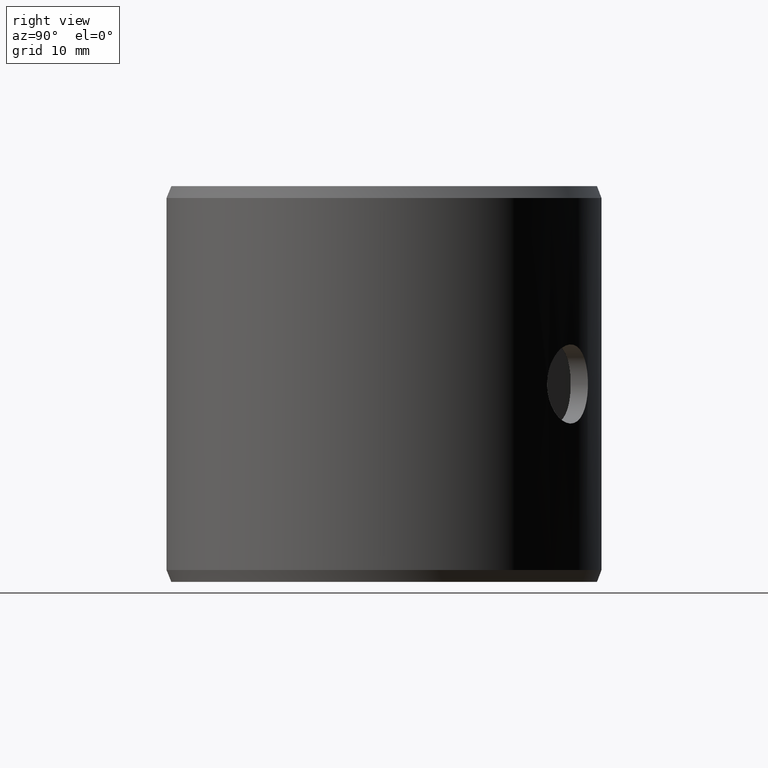
[diagram: clean part render]
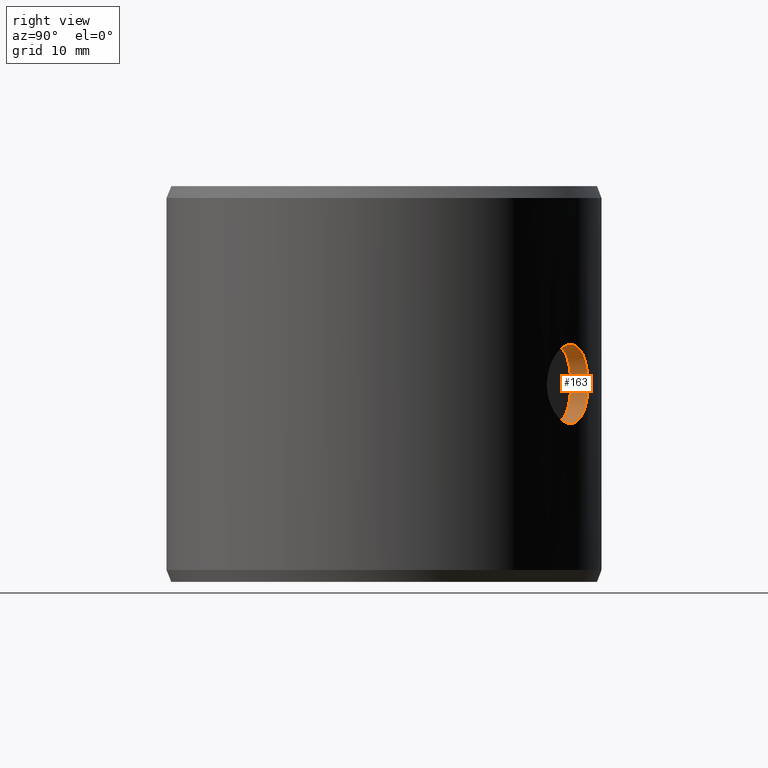
[diagram: same view with one face highlighted and labeled with its STEP entity id]
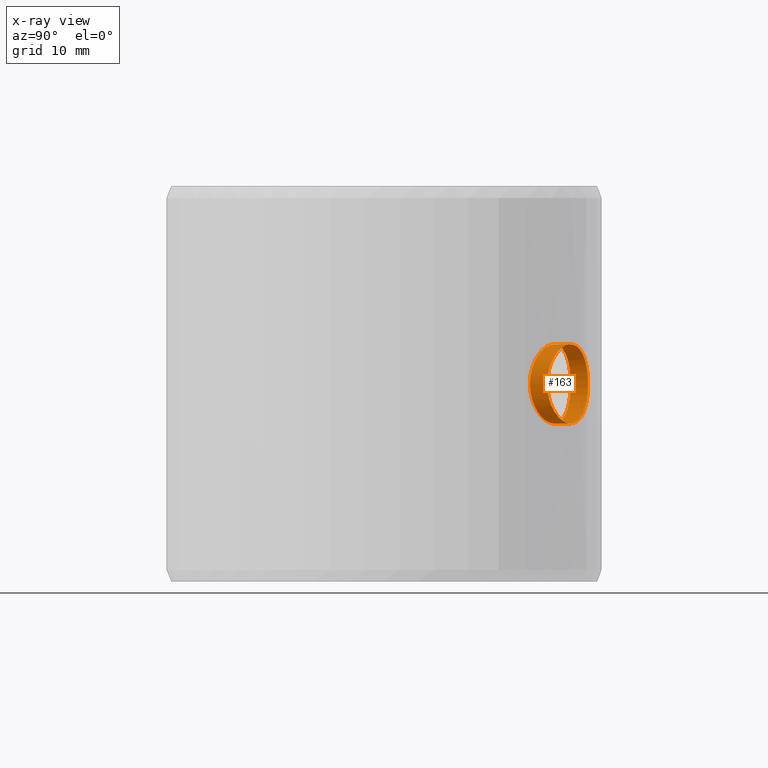
[diagram: x-ray of the same camera — body ghosted, the highlighted face saturated]
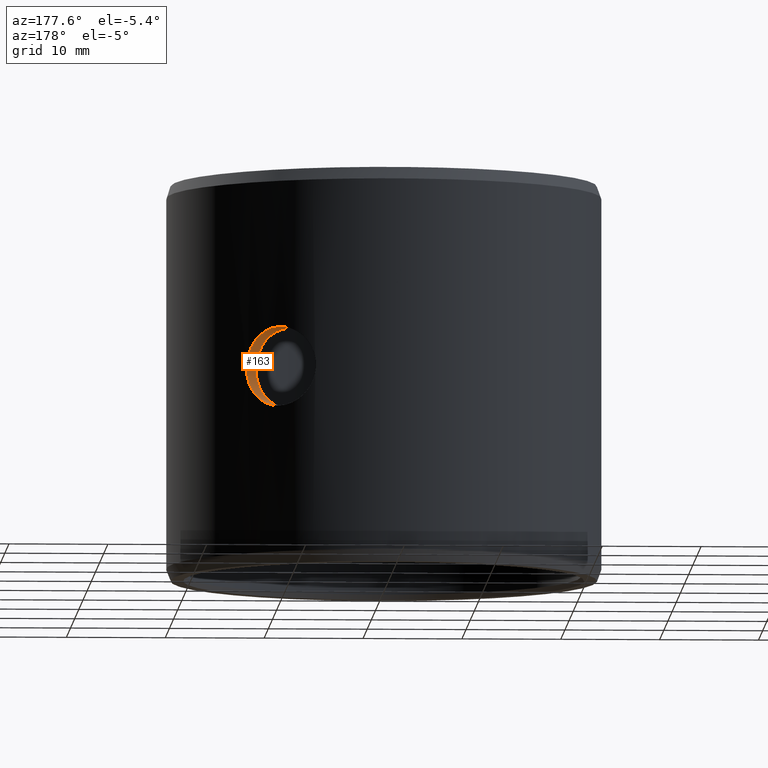
[diagram: same view with one face highlighted and labeled with its STEP entity id]
A machine part, right view. The second image highlights one B-rep face of the part: STEP entity #163.
The next image is the same camera in x-ray: the body ghosted, the highlighted face saturated — about 0% of this face is hidden behind the body in this view.
A second angle (auxiliary view) of the same face is appended — the face is thin or edge-on in the first view.
In plain terms, the highlighted cylindrical surface (bore or boss wall) has radius 4 mm, axis along (0.515, 0.8572, 0).
Its self-contained STEP definition (entity closure, byte-faithful):
#163=ADVANCED_FACE('',(#188,#189),#190,.F.);
#188=FACE_OUTER_BOUND('',#214,.T.);
#189=FACE_OUTER_BOUND('',#215,.T.);
#190=CYLINDRICAL_SURFACE('',#216,0.004);
#214=EDGE_LOOP('',(#297));
#215=EDGE_LOOP('',(#298));
#216=AXIS2_PLACEMENT_3D('',#299,#300,#301);
#297=ORIENTED_EDGE('',*,*,#326,.F.);
#298=ORIENTED_EDGE('',*,*,#327,.F.);
#299=CARTESIAN_POINT('',(0.0145718441119665,-0.00875564727342002,0.02));
#300=DIRECTION('',(0.857167300703911,-0.515038074907061,0.0));
#301=DIRECTION('',(-0.515038074907061,-0.857167300703911,0.0));
#326=EDGE_CURVE('',#368,#368,#369,.T.);
#327=EDGE_CURVE('',#370,#370,#371,.T.);
#368=VERTEX_POINT('',#428);
#369=B_SPLINE_CURVE_WITH_KNOTS('',3,(#429,#430,#431,#432,#433,#434,#435,#436,#437,#438,#439,#440,#441,#442,#443,#444,#445,#446,#447,#448,#449,#450,#451,#452,#453,#454,#455,#456,#457,#458,#459,#460,#461,#462,#463,#464,#465,#466,#467,#468,#469,#470,#471,#472,#473,#474,#475,#476,#477,#478,#479,#480,#481,#482,#483,#484,#485,#486,#487,#488,#489,#490,#491,#492,#493,#494),.UNSPECIFIED.,.T.,.F.,(2,2,2,2,2,2,2,2,2,2,2,2,2,2,2,2,2,2,2,2,2,2,2,2,2,2,2,2,2,2,2,2,2,2,2),(-0.000783488712854397,0.0,0.000783488712854403,0.00156697742570881,0.00235046613856321,0.00313395485141761,0.00391744356427201,0.00470093227712641,0.00548442098998081,0.00626790970283521,0.00705139841568961,0.00783488712854401,0.00861837584139841,0.00940186455425281,0.0101853532671072,0.0109688419799616,0.011752330692816,0.0125358194056704,0.0133193081185248,0.0141027968313792,0.0148862855442336,0.015669774257088,0.0164532629699424,0.0172367516827968,0.0180202403956512,0.0188037291085056,0.01958721782136,0.0203707065342144,0.0211541952470688,0.0219376839599232,0.0227211726727776,0.023504661385632,0.0242881500984864,0.0250716388113408,0.0258551275241952),.UNSPECIFIED.);
#370=VERTEX_POINT('',#495);
#371=B_SPLINE_CURVE_WITH_KNOTS('',3,(#496,#497,#498,#499,#500,#501,#502,#503,#504,#505,#506,#507,#508,#509,#510,#511,#512,#513,#514,#515,#516,#517,#518,#519,#520,#521,#522,#523,#524,#525,#526,#527,#528,#529,#530,#531,#532,#533,#534,#535,#536,#537,#538,#539,#540,#541,#542,#543,#544,#545,#546,#547,#548,#549,#550,#551,#552,#553,#554,#555,#556,#557,#558,#559,#560,#561),.UNSPECIFIED.,.T.,.F.,(2,2,2,2,2,2,2,2,2,2,2,2,2,2,2,2,2,2,2,2,2,2,2,2,2,2,2,2,2,2,2,2,2,2,2),(-0.000783143181487496,0.0,0.000783143181487496,0.00156628636297499,0.00234942954446249,0.00313257272594999,0.00391571590743748,0.00469885908892498,0.00548200227041248,0.00626514545189997,0.00704828863338747,0.00783143181487496,0.00861457499636246,0.00939771817784996,0.0101808613593375,0.010964004540825,0.0117471477223124,0.0125302909037999,0.0133134340852874,0.0140965772667749,0.0148797204482624,0.0156628636297499,0.0164460068112374,0.0172291499927249,0.0180122931742124,0.0187954363556999,0.0195785795371874,0.0203617227186749,0.0211448659001624,0.0219280090816499,0.0227111522631374,0.0234942954446249,0.0242774386261124,0.0250605818075999,0.0258437249890874),.UNSPECIFIED.);
#428=CARTESIAN_POINT('',(0.0147368277877588,-0.0135213130558368,0.02));
#429=CARTESIAN_POINT('',(0.0147368277877588,-0.0135213130558368,0.0202649768366606));
#430=CARTESIAN_POINT('',(0.0147368277877588,-0.0135213130558368,0.0197350231633394));
#431=CARTESIAN_POINT('',(0.0147548588185547,-0.0135017349604381,0.0194746115155811));
#432=CARTESIAN_POINT('',(0.0148248897886548,-0.0134248034790695,0.0189625019382956));
#433=CARTESIAN_POINT('',(0.0148777620439247,-0.0133664749548795,0.0187081043687347));
#434=CARTESIAN_POINT('',(0.015013660018012,-0.0132136470748472,0.0182240496829964));
#435=CARTESIAN_POINT('',(0.015096101316406,-0.0131198088128641,0.0179945749427164));
#436=CARTESIAN_POINT('',(0.0152875369807863,-0.0128962347723045,0.0175602861250295));
#437=CARTESIAN_POINT('',(0.0153972162432063,-0.0127655896196565,0.0173551958955521));
#438=CARTESIAN_POINT('',(0.01563180601329,-0.0124772267407629,0.0169872845563086));
#439=CARTESIAN_POINT('',(0.0157576702396287,-0.0123184483584925,0.0168219438816031));
#440=CARTESIAN_POINT('',(0.0160246708287192,-0.0119690545229321,0.016529492696028));
#441=CARTESIAN_POINT('',(0.0161631152024075,-0.0117818459578267,0.0164056508608759));
#442=CARTESIAN_POINT('',(0.0164425741265372,-0.0113885882932689,0.0162059254306111));
#443=CARTESIAN_POINT('',(0.0165856226508623,-0.011179622130052,0.0161287501269086));
#444=CARTESIAN_POINT('',(0.016869042553392,-0.0107471965190648,0.0160257250547623));
#445=CARTESIAN_POINT('',(0.0170073640447639,-0.0105270130755956,0.0160001556034499));
#446=CARTESIAN_POINT('',(0.017276887997938,-0.010078570193812,0.0159998457990094));
#447=CARTESIAN_POINT('',(0.0174092679568996,-0.00984801587480328,0.0160259744036255));
#448=CARTESIAN_POINT('',(0.0176565324375543,-0.00939749380138671,0.016128316406424));
#449=CARTESIAN_POINT('',(0.0177725068907729,-0.0091759022486153,0.0162040304964613));
#450=CARTESIAN_POINT('',(0.0179904432382571,-0.00874088870480353,0.0164049855142014));
#451=CARTESIAN_POINT('',(0.0180913225134225,-0.0085294446780273,0.016529925083976));
#452=CARTESIAN_POINT('',(0.0182726691939624,-0.00813369149453143,0.0168191086026926));
#453=CARTESIAN_POINT('',(0.0183545876534978,-0.00794634405053023,0.0169851821852114));
#454=CARTESIAN_POINT('',(0.0185005761833137,-0.00760026003402093,0.0173568814974547));
#455=CARTESIAN_POINT('',(0.0185631023485181,-0.00744532049031294,0.0175581064867447));
#456=CARTESIAN_POINT('',(0.0186704321776277,-0.00717192640129805,0.0179906117354856));
#457=CARTESIAN_POINT('',(0.0187155607881087,-0.00705253189640114,0.0182247654896944));
#458=CARTESIAN_POINT('',(0.0187865809005554,-0.00686110776988901,0.0187081663927967));
#459=CARTESIAN_POINT('',(0.0188128202513417,-0.00678826558198345,0.0189574781197062));
#460=CARTESIAN_POINT('',(0.0188481938548091,-0.00668942029120389,0.0194714901600617));
#461=CARTESIAN_POINT('',(0.0188570961112188,-0.00666407730027469,0.019736980832904));
#462=CARTESIAN_POINT('',(0.018857168437677,-0.00666387263720272,0.0202597645692136));
#463=CARTESIAN_POINT('',(0.0188486220073478,-0.00668821368918649,0.0205200351588204));
#464=CARTESIAN_POINT('',(0.018813264383158,-0.00678703449066663,0.0210382667522375));
#465=CARTESIAN_POINT('',(0.0187868153247065,-0.00686045681838141,0.0212896275802896));
#466=CARTESIAN_POINT('',(0.0187162312261579,-0.00705074368350564,0.0217712737932063));
#467=CARTESIAN_POINT('',(0.018671433426763,-0.00716933434941554,0.0220048699439007));
#468=CARTESIAN_POINT('',(0.0185635975078861,-0.00744410026725574,0.0224403751213335));
#469=CARTESIAN_POINT('',(0.0185010864351698,-0.00759897521072943,0.0226413493827257));
#470=CARTESIAN_POINT('',(0.0183564989111846,-0.00794188713459098,0.0230104137630827));
#471=CARTESIAN_POINT('',(0.0182736408044104,-0.00813151267936323,0.0231790990725448));
#472=CARTESIAN_POINT('',(0.0180922044484154,-0.00852757790348447,0.0234689090258068));
#473=CARTESIAN_POINT('',(0.0179930363675113,-0.0087355524379243,0.0235921136850152));
#474=CARTESIAN_POINT('',(0.0177751332248424,-0.00917081637355227,0.0237940454768979));
#475=CARTESIAN_POINT('',(0.0176576076474414,-0.00939544743905922,0.0238710012810527));
#476=CARTESIAN_POINT('',(0.0174113300170644,-0.00984434494763255,0.0239734063996025));
#477=CARTESIAN_POINT('',(0.0172807942253257,-0.0100719369153565,0.0239998136980198));
#478=CARTESIAN_POINT('',(0.0170087883789147,-0.010524774589808,0.0240001843328627));
#479=CARTESIAN_POINT('',(0.0168703380948992,-0.0107451157161726,0.0239744616152448));
#480=CARTESIAN_POINT('',(0.0165891637613913,-0.0111743216746203,0.0238728165112523));
#481=CARTESIAN_POINT('',(0.0164449149356746,-0.0113852324409273,0.023795543599876));
#482=CARTESIAN_POINT('',(0.0161641778756178,-0.0117804116473452,0.0235953100730238));
#483=CARTESIAN_POINT('',(0.0160269833724549,-0.0119659443173579,0.0234726500905113));
#484=CARTESIAN_POINT('',(0.0157609535243587,-0.0123142341796013,0.0231820344319109));
#485=CARTESIAN_POINT('',(0.0156328480205379,-0.012475920741666,0.0230141515675283));
#486=CARTESIAN_POINT('',(0.0153983193988574,-0.0127642585086773,0.0226467304740491));
#487=CARTESIAN_POINT('',(0.0152903304125845,-0.0128929415868406,0.0224455244518676));
#488=CARTESIAN_POINT('',(0.0150967773925083,-0.0131190494796209,0.0220074760042898));
#489=CARTESIAN_POINT('',(0.015014267159697,-0.0132129541228296,0.021777556689022));
#490=CARTESIAN_POINT('',(0.0148789076701209,-0.0133651966517059,0.0212965252760537));
#491=CARTESIAN_POINT('',(0.0148257632082183,-0.0134238414301546,0.0210427887486843));
#492=CARTESIAN_POINT('',(0.0147548634108766,-0.0135017324508548,0.0205265048407942));
#493=CARTESIAN_POINT('',(0.0147368277877588,-0.0135213130558368,0.0202649768366606));
#494=CARTESIAN_POINT('',(0.0147368277877588,-0.0135213130558368,0.0197350231633394));
#495=CARTESIAN_POINT('',(0.0164832116264059,-0.0145706463301777,0.02));
#496=CARTESIAN_POINT('',(0.0164832116264059,-0.0145706463301777,0.0197351496906929));
#497=CARTESIAN_POINT('',(0.0164832116264058,-0.0145706463301777,0.0202648503093071));
#498=CARTESIAN_POINT('',(0.0165007922203708,-0.0145508260703122,0.0205251622067491));
#499=CARTESIAN_POINT('',(0.0165691298990779,-0.014472961604862,0.0210371156822544));
#500=CARTESIAN_POINT('',(0.0166207341600073,-0.0144139371658827,0.0212914496460818));
#501=CARTESIAN_POINT('',(0.0167535756167427,-0.0142593159966995,0.0217755682362726));
#502=CARTESIAN_POINT('',(0.0168342249639935,-0.0141644069047839,0.022005092029244));
#503=CARTESIAN_POINT('',(0.0170217603192587,-0.0139384801444182,0.0224394736495143));
#504=CARTESIAN_POINT('',(0.0171293711168049,-0.0138064877587962,0.0226447052538363));
#505=CARTESIAN_POINT('',(0.0173599083670454,-0.013515474115946,0.0230128029697214));
#506=CARTESIAN_POINT('',(0.0174837557700863,-0.0133553932541377,0.023178183676375));
#507=CARTESIAN_POINT('',(0.0177469232667903,-0.0130036517703047,0.0234706254426348));
#508=CARTESIAN_POINT('',(0.0178837313304818,-0.0128152367302046,0.023594544595303));
#509=CARTESIAN_POINT('',(0.0181603114118631,-0.0124201943695015,0.023794225821988));
#510=CARTESIAN_POINT('',(0.0183021107450861,-0.0122106322407033,0.0238713306132433));
#511=CARTESIAN_POINT('',(0.0185839166479724,-0.0117773018754005,0.0239743061354708));
#512=CARTESIAN_POINT('',(0.0187217908055454,-0.0115569423212521,0.0239998471774273));
#513=CARTESIAN_POINT('',(0.018991172676394,-0.0111087230210648,0.0240001514682181));
#514=CARTESIAN_POINT('',(0.0191238945455463,-0.0108785404612039,0.0239740530286047));
#515=CARTESIAN_POINT('',(0.01937268558632,-0.0104290478150604,0.0238717685730337));
#516=CARTESIAN_POINT('',(0.0194897839087334,-0.0102082029811458,0.0237960955611503));
#517=CARTESIAN_POINT('',(0.0197105755255259,-0.00977508554264033,0.0235952766913464));
#518=CARTESIAN_POINT('',(0.0198133104249374,-0.00956451962695219,0.0234702787306186));
#519=CARTESIAN_POINT('',(0.0199985347712013,-0.00917092758091256,0.0231810494640605));
#520=CARTESIAN_POINT('',(0.0200824670445974,-0.00898497310037473,0.0230151529159647));
#521=CARTESIAN_POINT('',(0.020232833917774,-0.00864104483656754,0.0226430864639846));
#522=CARTESIAN_POINT('',(0.0202974777933827,-0.00848727628499315,0.0224417174980967));
#523=CARTESIAN_POINT('',(0.0204087110412513,-0.0082162021120089,0.0220091166018946));
#524=CARTESIAN_POINT('',(0.0204556499945846,-0.0080979470178954,0.0217750149544805));
#525=CARTESIAN_POINT('',(0.0205297130087779,-0.0079083023704716,0.02129139065483));
#526=CARTESIAN_POINT('',(0.0205571437777756,-0.00783623448227296,0.0210420806438573));
#527=CARTESIAN_POINT('',(0.0205941411690446,-0.00773848051433647,0.020528363873268));
#528=CARTESIAN_POINT('',(0.0206034789732122,-0.00771340743197346,0.0202629166769863));
#529=CARTESIAN_POINT('',(0.0206035532515159,-0.00771320902239598,0.0197402721264132));
#530=CARTESIAN_POINT('',(0.0205945894878762,-0.00773728702455651,0.0194801569585405));
#531=CARTESIAN_POINT('',(0.0205576283499689,-0.00783496287796358,0.0189624089064897));
#532=CARTESIAN_POINT('',(0.0205299444807146,-0.00790769287593807,0.0187107370270379));
#533=CARTESIAN_POINT('',(0.0204563789592809,-0.00809609701496201,0.0182291369060092));
#534=CARTESIAN_POINT('',(0.0204098260314475,-0.00821344684539773,0.0179957201867439));
#535=CARTESIAN_POINT('',(0.0202979883170471,-0.00848606964366565,0.0175597747687284));
#536=CARTESIAN_POINT('',(0.0202333591452295,-0.00863977285230835,0.0173587071208716));
#537=CARTESIAN_POINT('',(0.0200846034367308,-0.00898015601359946,0.0169896481410786));
#538=CARTESIAN_POINT('',(0.0199995915111697,-0.00916862874154441,0.0168208463995231));
#539=CARTESIAN_POINT('',(0.0198141968713226,-0.00956268874106001,0.0165308622681452));
#540=CARTESIAN_POINT('',(0.0197132728871417,-0.00976964484825074,0.0164077010317899));
#541=CARTESIAN_POINT('',(0.019492594203149,-0.0102028358614273,0.016205949069181));
#542=CARTESIAN_POINT('',(0.0193737545601679,-0.0104270385981468,0.0161289039247809));
#543=CARTESIAN_POINT('',(0.0191259460157752,-0.0108749109737287,0.0160265602843506));
#544=CARTESIAN_POINT('',(0.018995297348443,-0.0111017337879936,0.0160002015611302));
#545=CARTESIAN_POINT('',(0.0187231887184215,-0.0115547400952863,0.0159998007400759));
#546=CARTESIAN_POINT('',(0.018585160995672,-0.0117752924410838,0.0160255274942246));
#547=CARTESIAN_POINT('',(0.0183057213277933,-0.0122051746393596,0.0161270666687465));
#548=CARTESIAN_POINT('',(0.018162750316762,-0.0124166522299629,0.0162042259827015));
#549=CARTESIAN_POINT('',(0.017884770908397,-0.0128138097856585,0.0164044949002063));
#550=CARTESIAN_POINT('',(0.0177493025849922,-0.0130003896303061,0.016527148792191));
#551=CARTESIAN_POINT('',(0.017487229491962,-0.0133508305917212,0.0168175472080746));
#552=CARTESIAN_POINT('',(0.0173609939161183,-0.0135140796145733,0.0169856724618444));
#553=CARTESIAN_POINT('',(0.0171304851349107,-0.0138051054551251,0.0173533092590707));
#554=CARTESIAN_POINT('',(0.0170246957468154,-0.0139349120134622,0.0175543205589722));
#555=CARTESIAN_POINT('',(0.0168350930759152,-0.0141633922214927,0.0179923155537983));
#556=CARTESIAN_POINT('',(0.0167541762205813,-0.0142586073548318,0.0182228127804311));
#557=CARTESIAN_POINT('',(0.0166218830187279,-0.0144126093904359,0.018703801205469));
#558=CARTESIAN_POINT('',(0.0165700609516065,-0.0144718981744799,0.018957107970222));
#559=CARTESIAN_POINT('',(0.016500796372854,-0.014550823886436,0.0194736241396767));
#560=CARTESIAN_POINT('',(0.0164832116264059,-0.0145706463301777,0.0197351496906929));
#561=CARTESIAN_POINT('',(0.0164832116264058,-0.0145706463301777,0.0202648503093071));